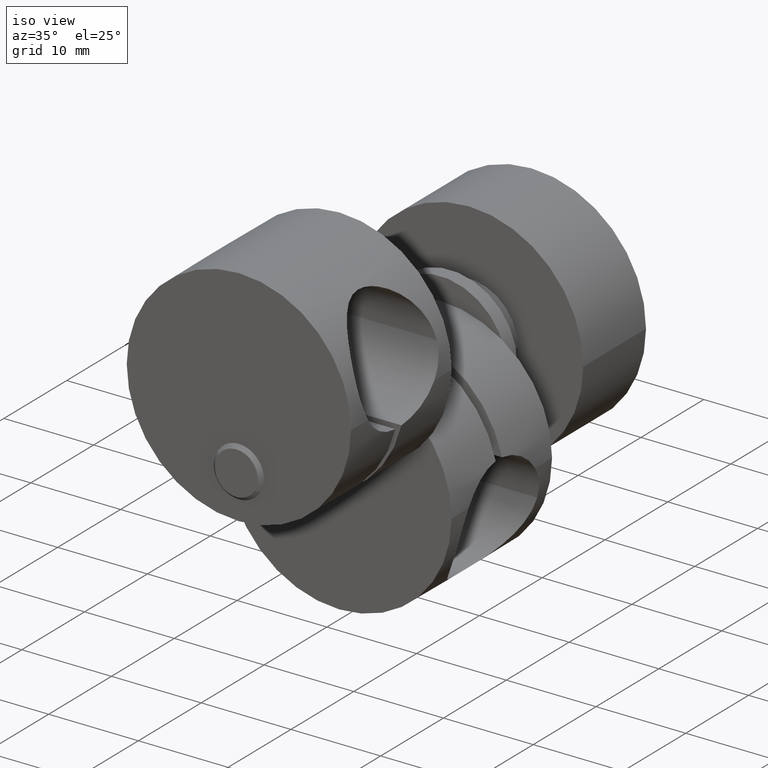
[diagram: clean part render]
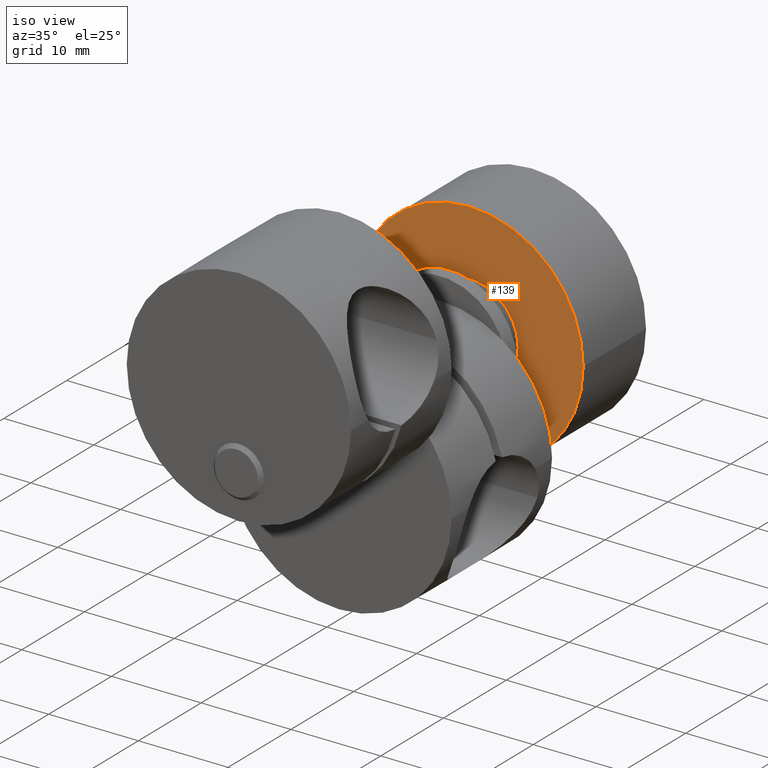
[diagram: same view with one face highlighted and labeled with its STEP entity id]
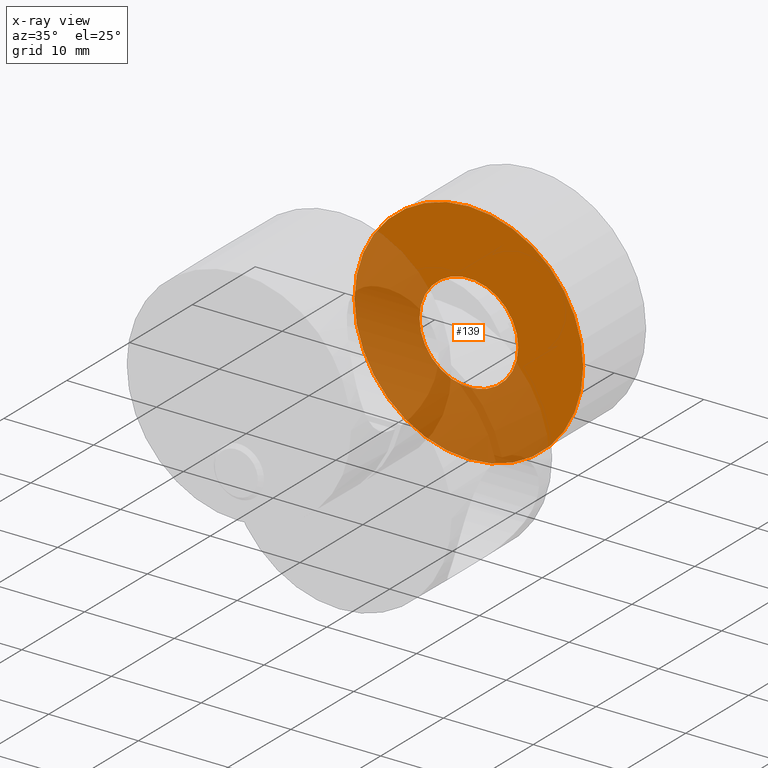
[diagram: x-ray of the same camera — body ghosted, the highlighted face saturated]
A machine part, iso view. The second image highlights one B-rep face of the part: STEP entity #139.
The next image is the same camera in x-ray: the body ghosted, the highlighted face saturated — about 51% of this face is hidden behind the body in this view.
In plain terms, the highlighted planar face has unit normal (0, 1, 0).
Its self-contained STEP definition (entity closure, byte-faithful):
#1 = AXIS2_PLACEMENT_3D ( 'NONE', #1237, #1780, #2157 ) ;
#115 = VERTEX_POINT ( 'NONE', #1420 ) ;
#139 = ADVANCED_FACE ( 'NONE', ( #1412, #624 ), #2174, .F. ) ;
#267 = ORIENTED_EDGE ( 'NONE', *, *, #1665, .T. ) ;
#354 = CARTESIAN_POINT ( 'NONE',  ( 1.296605242386302800E-014, 12.60000000000001600, 12.99999999999999500 ) ) ;
#466 = EDGE_CURVE ( 'NONE', #802, #523, #2362, .T. ) ;
#523 = VERTEX_POINT ( 'NONE', #1667 ) ;
#533 = CIRCLE ( 'NONE', #1835, 5.500000000000000000 ) ;
#534 = AXIS2_PLACEMENT_3D ( 'NONE', #354, #2183, #1071 ) ;
#622 = DIRECTION ( 'NONE',  ( 6.647342776536528200E-016, -1.000000000000000000, -5.971111462378656900E-016 ) ) ;
#624 = FACE_OUTER_BOUND ( 'NONE', #1589, .T. ) ;
#633 = DIRECTION ( 'NONE',  ( 1.000000000000000000, -6.308085367188389300E-016, 3.154042683594194800E-015 ) ) ;
#722 = CIRCLE ( 'NONE', #1745, 12.75000000000000000 ) ;
#802 = VERTEX_POINT ( 'NONE', #927 ) ;
#810 = ORIENTED_EDGE ( 'NONE', *, *, #1538, .F. ) ;
#815 = EDGE_LOOP ( 'NONE', ( #2209, #810 ) ) ;
#905 = DIRECTION ( 'NONE',  ( 6.647342776536528200E-016, -1.000000000000000000, -5.971111462378656900E-016 ) ) ;
#925 = ORIENTED_EDGE ( 'NONE', *, *, #1891, .T. ) ;
#927 = CARTESIAN_POINT ( 'NONE',  ( 5.499999999999998200, 12.60000000000000300, 7.500000000000012400 ) ) ;
#975 = DIRECTION ( 'NONE',  ( 1.000000000000000000, -6.802837160693361600E-016, 3.129305093918946300E-015 ) ) ;
#1071 = DIRECTION ( 'NONE',  ( -1.000000000000000000, 6.407438503943349300E-016, -3.108624468950437900E-015 ) ) ;
#1237 = CARTESIAN_POINT ( 'NONE',  ( -1.994202832960954900E-015, 12.60000000000000700, 7.499999999999995600 ) ) ;
#1285 = CARTESIAN_POINT ( 'NONE',  ( -1.994202832960954900E-015, 12.60000000000000700, 7.499999999999995600 ) ) ;
#1313 = VERTEX_POINT ( 'NONE', #1776 ) ;
#1387 = CARTESIAN_POINT ( 'NONE',  ( -1.994202832960954900E-015, 12.60000000000000700, 7.499999999999995600 ) ) ;
#1412 = FACE_BOUND ( 'NONE', #815, .T. ) ;
#1420 = CARTESIAN_POINT ( 'NONE',  ( -12.75000000000000200, 12.59999999999999800, 7.499999999999960900 ) ) ;
#1538 = EDGE_CURVE ( 'NONE', #523, #802, #533, .T. ) ;
#1566 = DIRECTION ( 'NONE',  ( 6.647342776536528200E-016, -1.000000000000000000, -5.971111462378656900E-016 ) ) ;
#1589 = EDGE_LOOP ( 'NONE', ( #267, #925 ) ) ;
#1658 = DIRECTION ( 'NONE',  ( 1.000000000000000000, -6.308085367188389300E-016, 3.154042683594194800E-015 ) ) ;
#1665 = EDGE_CURVE ( 'NONE', #1313, #115, #722, .T. ) ;
#1667 = CARTESIAN_POINT ( 'NONE',  ( -5.500000000000000900, 12.60000000000000300, 7.499999999999978700 ) ) ;
#1745 = AXIS2_PLACEMENT_3D ( 'NONE', #2320, #1566, #975 ) ;
#1776 = CARTESIAN_POINT ( 'NONE',  ( 12.74999999999999800, 12.59999999999999800, 7.500000000000035500 ) ) ;
#1780 = DIRECTION ( 'NONE',  ( 6.647342776536528200E-016, -1.000000000000000000, -5.971111462378656900E-016 ) ) ;
#1835 = AXIS2_PLACEMENT_3D ( 'NONE', #1387, #622, #633 ) ;
#1891 = EDGE_CURVE ( 'NONE', #115, #1313, #2094, .T. ) ;
#2094 = CIRCLE ( 'NONE', #1, 12.75000000000000000 ) ;
#2157 = DIRECTION ( 'NONE',  ( 1.000000000000000000, -6.802837160693361600E-016, 3.129305093918946300E-015 ) ) ;
#2174 = PLANE ( 'NONE',  #534 ) ;
#2183 = DIRECTION ( 'NONE',  ( 6.407438503943330600E-016, 1.000000000000000000, 5.971111462378697300E-016 ) ) ;
#2209 = ORIENTED_EDGE ( 'NONE', *, *, #466, .F. ) ;
#2264 = AXIS2_PLACEMENT_3D ( 'NONE', #1285, #905, #1658 ) ;
#2320 = CARTESIAN_POINT ( 'NONE',  ( -1.994202832960954900E-015, 12.60000000000000700, 7.499999999999995600 ) ) ;
#2362 = CIRCLE ( 'NONE', #2264, 5.500000000000000000 ) ;